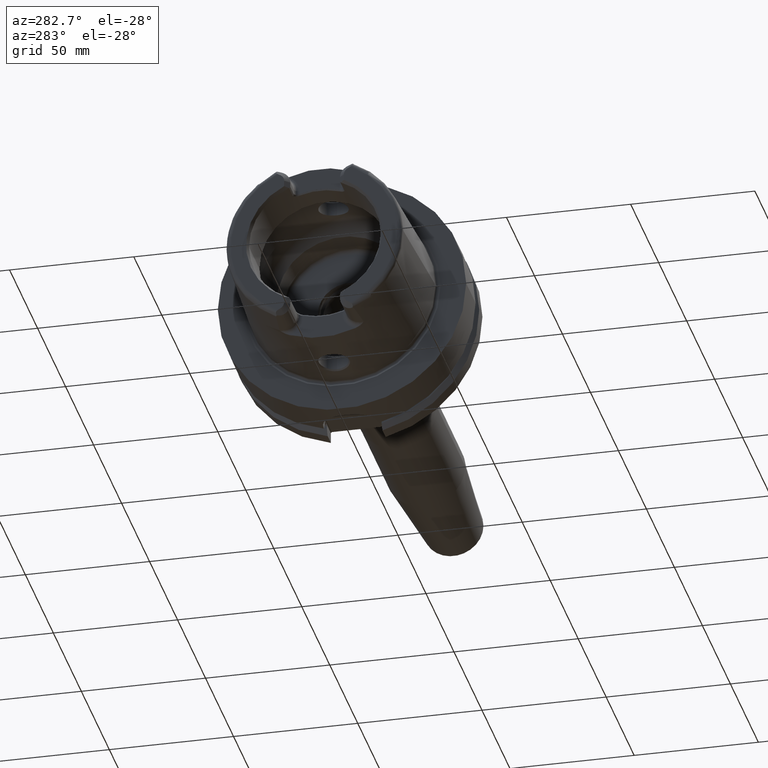
[diagram: clean part render]
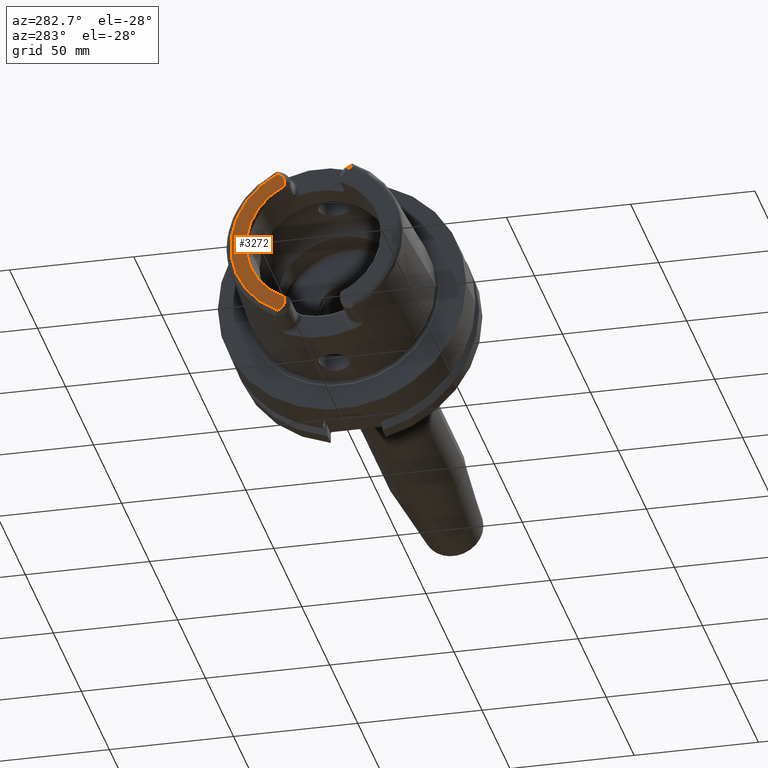
[diagram: same view with one face highlighted and labeled with its STEP entity id]
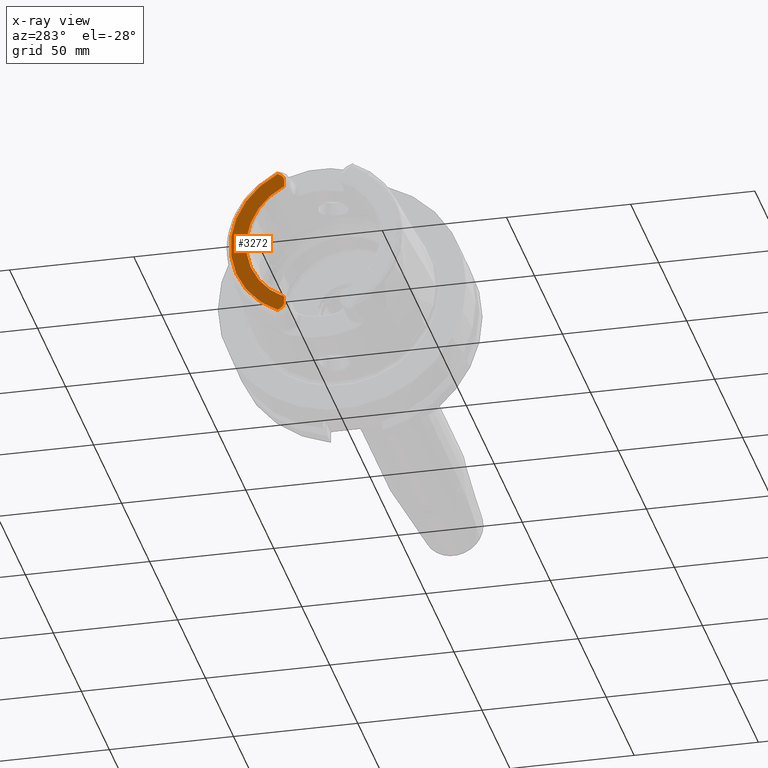
[diagram: x-ray of the same camera — body ghosted, the highlighted face saturated]
A machine part, auxiliary view. The second image highlights one B-rep face of the part: STEP entity #3272.
The next image is the same camera in x-ray: the body ghosted, the highlighted face saturated — about 0% of this face is hidden behind the body in this view.
In plain terms, the highlighted planar face has unit normal (1, 0, 0).
Its self-contained STEP definition (entity closure, byte-faithful):
#100=DIRECTION('',(0.E0,0.E0,1.E0));
#101=VECTOR('',#100,2.370180025047E0);
#102=CARTESIAN_POINT('',(-5.E1,1.201E1,-2.696E1));
#103=LINE('',#102,#101);
#104=CARTESIAN_POINT('',(-5.E1,1.501E1,-2.696E1));
#105=DIRECTION('',(1.E0,0.E0,0.E0));
#106=DIRECTION('',(0.E0,-1.E0,0.E0));
#107=AXIS2_PLACEMENT_3D('',#104,#105,#106);
#109=DIRECTION('',(0.E0,-8.533905854017E-1,5.212720103245E-1));
#110=VECTOR('',#109,1.392150953463E0);
#111=CARTESIAN_POINT('',(-5.E1,1.463423248617E1,-3.024586108239E1));
#112=LINE('',#111,#110);
#113=DIRECTION('',(0.E0,-8.533905854017E-1,-5.212720103245E-1));
#114=VECTOR('',#113,1.392150953463E0);
#115=CARTESIAN_POINT('',(-5.E1,1.463423248617E1,3.024586108239E1));
#116=LINE('',#115,#114);
#117=CARTESIAN_POINT('',(-5.E1,1.501E1,2.696E1));
#118=DIRECTION('',(-1.E0,0.E0,0.E0));
#119=DIRECTION('',(0.E0,-1.E0,0.E0));
#120=AXIS2_PLACEMENT_3D('',#117,#118,#119);
#122=DIRECTION('',(0.E0,0.E0,1.E0));
#123=VECTOR('',#122,2.370180025047E0);
#124=CARTESIAN_POINT('',(-5.E1,1.201E1,2.458981997495E1));
#125=LINE('',#124,#123);
#157=CARTESIAN_POINT('',(-5.E1,0.E0,0.E0));
#158=DIRECTION('',(1.E0,0.E0,0.E0));
#159=DIRECTION('',(0.E0,4.388653384185E-1,-8.985528447091E-1));
#160=AXIS2_PLACEMENT_3D('',#157,#158,#159);
#340=CARTESIAN_POINT('',(-5.E1,0.E0,0.E0));
#341=DIRECTION('',(-1.E0,0.E0,0.E0));
#342=DIRECTION('',(0.E0,4.355401503799E-1,9.001693048572E-1));
#343=AXIS2_PLACEMENT_3D('',#340,#341,#342);
#2803=CARTESIAN_POINT('',(-5.E1,1.201E1,2.458981997495E1));
#2804=CARTESIAN_POINT('',(-5.E1,1.201E1,2.696E1));
#2805=VERTEX_POINT('',#2803);
#2806=VERTEX_POINT('',#2804);
#2807=CARTESIAN_POINT('',(-5.E1,1.344618396903E1,2.952017175621E1));
#2808=VERTEX_POINT('',#2807);
#2809=CARTESIAN_POINT('',(-5.E1,1.463423248617E1,3.024586108239E1));
#2810=VERTEX_POINT('',#2809);
#2894=CARTESIAN_POINT('',(-5.E1,1.201E1,-2.696E1));
#2895=CARTESIAN_POINT('',(-5.E1,1.201E1,-2.458981997495E1));
#2896=VERTEX_POINT('',#2894);
#2897=VERTEX_POINT('',#2895);
#2898=CARTESIAN_POINT('',(-5.E1,1.344618396903E1,-2.952017175621E1));
#2899=VERTEX_POINT('',#2898);
#2900=CARTESIAN_POINT('',(-5.E1,1.463423248617E1,-3.024586108239E1));
#2901=VERTEX_POINT('',#2900);
#3249=CARTESIAN_POINT('',(-5.E1,0.E0,0.E0));
#3250=DIRECTION('',(1.E0,0.E0,0.E0));
#3251=DIRECTION('',(0.E0,-1.E0,0.E0));
#3252=AXIS2_PLACEMENT_3D('',#3249,#3250,#3251);
#3253=PLANE('',#3252);
#3255=ORIENTED_EDGE('',*,*,#3254,.F.);
#3257=ORIENTED_EDGE('',*,*,#3256,.T.);
#3259=ORIENTED_EDGE('',*,*,#3258,.F.);
#3261=ORIENTED_EDGE('',*,*,#3260,.F.);
#3263=ORIENTED_EDGE('',*,*,#3262,.T.);
#3265=ORIENTED_EDGE('',*,*,#3264,.F.);
#3267=ORIENTED_EDGE('',*,*,#3266,.F.);
#3269=ORIENTED_EDGE('',*,*,#3268,.F.);
#3270=EDGE_LOOP('',(#3255,#3257,#3259,#3261,#3263,#3265,#3267,#3269));
#3271=FACE_OUTER_BOUND('',#3270,.F.);
#3272=ADVANCED_FACE('',(#3271),#3253,.F.);
#108=CIRCLE('',#107,3.E0);
#121=CIRCLE('',#120,3.E0);
#161=CIRCLE('',#160,2.736602540378E1);
#344=CIRCLE('',#343,3.360019156306E1);
#3254=EDGE_CURVE('',#2896,#2897,#103,.T.);
#3256=EDGE_CURVE('',#2896,#2899,#108,.T.);
#3258=EDGE_CURVE('',#2901,#2899,#112,.T.);
#3260=EDGE_CURVE('',#2810,#2901,#344,.T.);
#3262=EDGE_CURVE('',#2810,#2808,#116,.T.);
#3264=EDGE_CURVE('',#2806,#2808,#121,.T.);
#3266=EDGE_CURVE('',#2805,#2806,#125,.T.);
#3268=EDGE_CURVE('',#2897,#2805,#161,.T.);